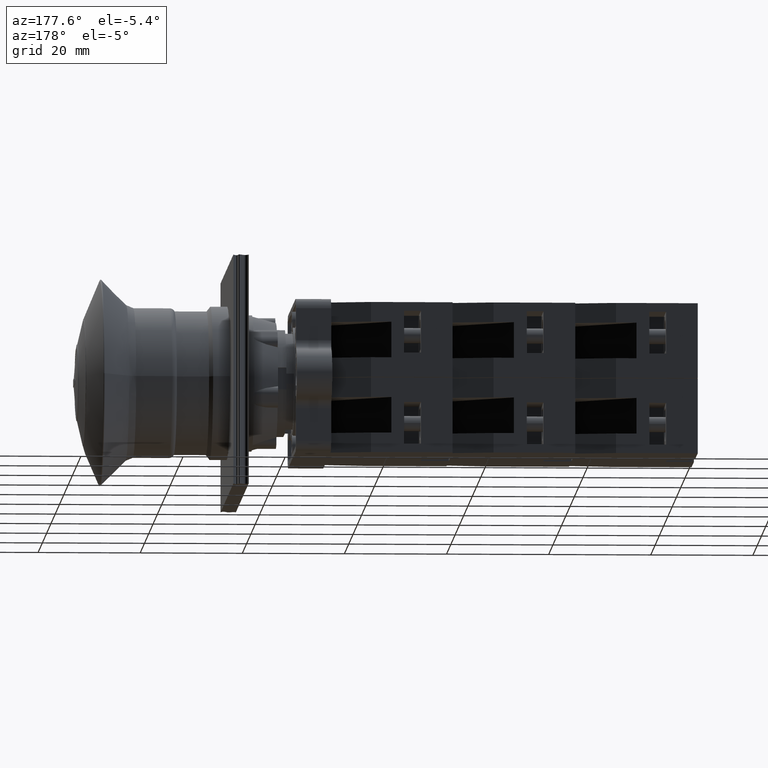
[diagram: clean part render]
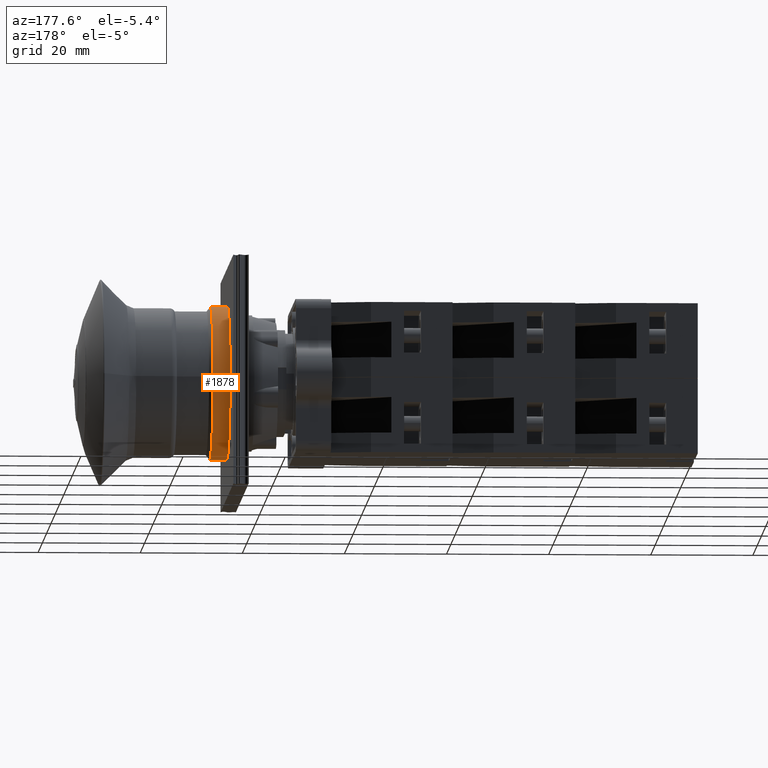
[diagram: same view with one face highlighted and labeled with its STEP entity id]
A machine part, auxiliary view. The second image highlights one B-rep face of the part: STEP entity #1878.
In plain terms, the highlighted cylindrical surface (bore or boss wall) has radius 15 mm, axis along (1, 0, 0).
Its self-contained STEP definition (entity closure, byte-faithful):
#1697=CARTESIAN_POINT('',(-9.312268159545239,7.062611691764039,-13.776872313685111));
#1698=VERTEX_POINT('',#1697);
#1699=CARTESIAN_POINT('',(-9.312268159545239,1.129839215727505,0.0));
#1700=DIRECTION('',(1.0,0.0,0.0));
#1701=DIRECTION('',(0.0,1.0,0.0));
#1702=AXIS2_PLACEMENT_3D('',#1699,#1700,#1701);
#1703=CIRCLE('',#1702,15.0);
#1704=EDGE_CURVE('',#1698,#1698,#1703,.T.);
#1859=CARTESIAN_POINT('',(-7.642308843709269,1.129839215727505,0.0));
#1860=DIRECTION('',(1.0,0.0,0.0));
#1861=DIRECTION('',(0.0,1.0,0.0));
#1862=AXIS2_PLACEMENT_3D('',#1859,#1860,#1861);
#1863=CYLINDRICAL_SURFACE('',#1862,15.0);
#1864=CARTESIAN_POINT('',(-5.972349527873301,16.129839215727504,0.0));
#1865=VERTEX_POINT('',#1864);
#1866=CARTESIAN_POINT('',(-5.972349527873302,1.129839215727505,0.0));
#1867=DIRECTION('',(1.0,0.0,0.0));
#1868=DIRECTION('',(0.0,1.0,0.0));
#1869=AXIS2_PLACEMENT_3D('',#1866,#1867,#1868);
#1870=CIRCLE('',#1869,15.0);
#1871=EDGE_CURVE('',#1865,#1865,#1870,.T.);
#1872=ORIENTED_EDGE('',*,*,#1871,.F.);
#1873=EDGE_LOOP('',(#1872));
#1874=FACE_OUTER_BOUND('',#1873,.T.);
#1875=ORIENTED_EDGE('',*,*,#1704,.T.);
#1876=EDGE_LOOP('',(#1875));
#1877=FACE_BOUND('',#1876,.T.);
#1878=ADVANCED_FACE('',(#1874,#1877),#1863,.T.);